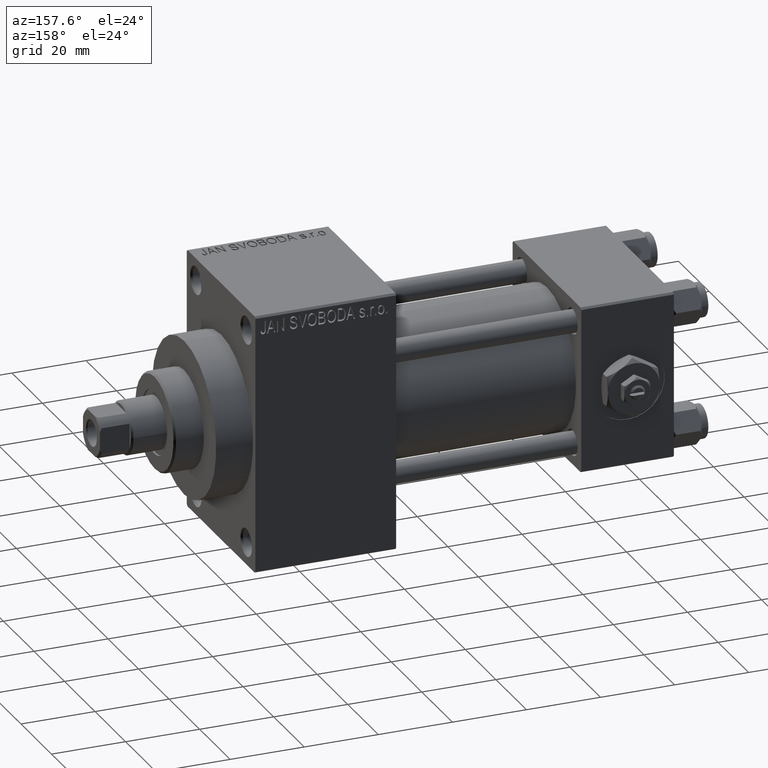
[diagram: clean part render]
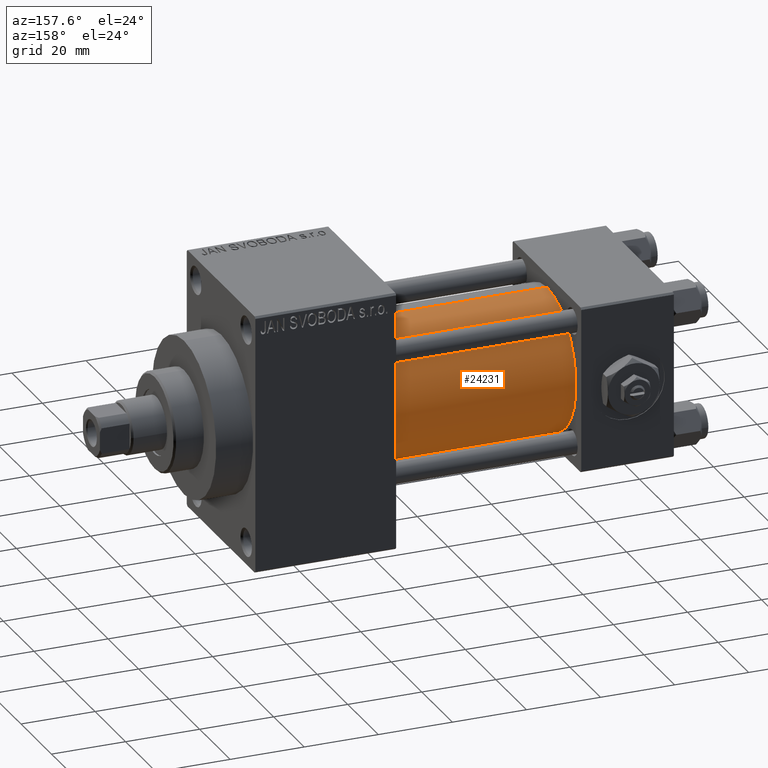
[diagram: same view with one face highlighted and labeled with its STEP entity id]
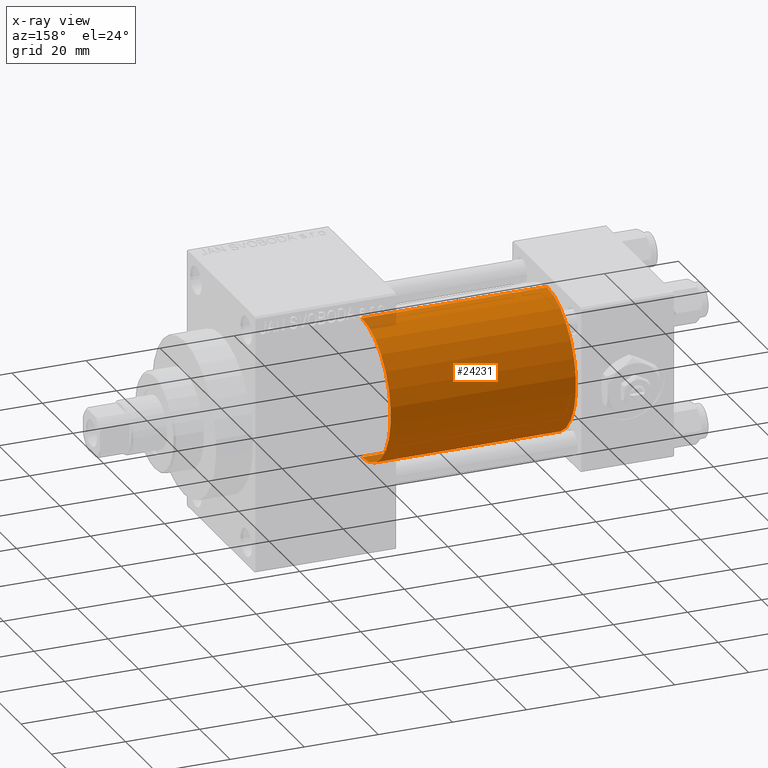
[diagram: x-ray of the same camera — body ghosted, the highlighted face saturated]
A machine part, auxiliary view. The second image highlights one B-rep face of the part: STEP entity #24231.
The next image is the same camera in x-ray: the body ghosted, the highlighted face saturated — about 2% of this face is hidden behind the body in this view.
In plain terms, the highlighted cylindrical surface (partial cylindrical patch) has radius 19 mm, axis along (-1, -0, -0).
Its self-contained STEP definition (entity closure, byte-faithful):
#1923 = CIRCLE ( 'NONE', #32588, 19.00000000000000000 ) ;
#2603 = AXIS2_PLACEMENT_3D ( 'NONE', #43566, #43810, #2764 ) ;
#2764 = DIRECTION ( 'NONE',  ( 0.000000000000000000, 0.000000000000000000, 1.000000000000000000 ) ) ;
#3136 = VERTEX_POINT ( 'NONE', #10550 ) ;
#3220 = DIRECTION ( 'NONE',  ( -1.000000000000000000, -0.000000000000000000, -0.000000000000000000 ) ) ;
#3459 = CARTESIAN_POINT ( 'NONE',  ( 75.00000000000001421, -2.752562955852396712E-16, -19.00000000000000000 ) ) ;
#4553 = LINE ( 'NONE', #30877, #23171 ) ;
#5475 = CARTESIAN_POINT ( 'NONE',  ( 25.00000000000000000, -2.602085213965210642E-15, 0.000000000000000000 ) ) ;
#6110 = DIRECTION ( 'NONE',  ( 0.000000000000000000, 0.000000000000000000, -1.000000000000000000 ) ) ;
#6156 = EDGE_LOOP ( 'NONE', ( #14876, #29390, #19602, #47057 ) ) ;
#10288 = CARTESIAN_POINT ( 'NONE',  ( 75.00000000000001421, -2.602085213965210642E-15, 0.000000000000000000 ) ) ;
#10550 = CARTESIAN_POINT ( 'NONE',  ( 75.00000000000001421, -2.752562955852396712E-16, -19.00000000000000000 ) ) ;
#12020 = EDGE_CURVE ( 'NONE', #3136, #38512, #33940, .T. ) ;
#13981 = DIRECTION ( 'NONE',  ( 1.000000000000000000, 0.000000000000000000, 0.000000000000000000 ) ) ;
#14876 = ORIENTED_EDGE ( 'NONE', *, *, #44127, .F. ) ;
#17806 = VERTEX_POINT ( 'NONE', #35491 ) ;
#19602 = ORIENTED_EDGE ( 'NONE', *, *, #33291, .T. ) ;
#20487 = DIRECTION ( 'NONE',  ( 1.000000000000000000, -0.000000000000000000, 0.000000000000000000 ) ) ;
#20618 = VERTEX_POINT ( 'NONE', #34927 ) ;
#22749 = VECTOR ( 'NONE', #3220, 1000.000000000000000 ) ;
#23171 = VECTOR ( 'NONE', #45823, 1000.000000000000000 ) ;
#24231 = ADVANCED_FACE ( 'NONE', ( #35987 ), #28617, .T. ) ;
#28617 = CYLINDRICAL_SURFACE ( 'NONE', #2603, 19.00000000000000000 ) ;
#29390 = ORIENTED_EDGE ( 'NONE', *, *, #12020, .T. ) ;
#30877 = CARTESIAN_POINT ( 'NONE',  ( 75.00000000000001421, -2.602085213965210642E-15, 19.00000000000000000 ) ) ;
#32588 = AXIS2_PLACEMENT_3D ( 'NONE', #10288, #13981, #6110 ) ;
#33291 = EDGE_CURVE ( 'NONE', #38512, #17806, #34192, .T. ) ;
#33940 = LINE ( 'NONE', #3459, #22749 ) ;
#34192 = CIRCLE ( 'NONE', #40458, 19.00000000000000000 ) ;
#34927 = CARTESIAN_POINT ( 'NONE',  ( 75.00000000000001421, -2.602085213965210642E-15, 19.00000000000000000 ) ) ;
#35491 = CARTESIAN_POINT ( 'NONE',  ( 25.00000000000000000, -2.602085213965210642E-15, 19.00000000000000000 ) ) ;
#35987 = FACE_OUTER_BOUND ( 'NONE', #6156, .T. ) ;
#38512 = VERTEX_POINT ( 'NONE', #39075 ) ;
#39075 = CARTESIAN_POINT ( 'NONE',  ( 25.00000000000000000, -2.752562955852396712E-16, -19.00000000000000000 ) ) ;
#40458 = AXIS2_PLACEMENT_3D ( 'NONE', #5475, #20487, #46746 ) ;
#43566 = CARTESIAN_POINT ( 'NONE',  ( 75.00000000000001421, -2.602085213965210642E-15, 0.000000000000000000 ) ) ;
#43810 = DIRECTION ( 'NONE',  ( -1.000000000000000000, -0.000000000000000000, -0.000000000000000000 ) ) ;
#44127 = EDGE_CURVE ( 'NONE', #3136, #20618, #1923, .T. ) ;
#45442 = EDGE_CURVE ( 'NONE', #20618, #17806, #4553, .T. ) ;
#45823 = DIRECTION ( 'NONE',  ( -1.000000000000000000, -0.000000000000000000, -0.000000000000000000 ) ) ;
#46746 = DIRECTION ( 'NONE',  ( 0.000000000000000000, 0.000000000000000000, 1.000000000000000000 ) ) ;
#47057 = ORIENTED_EDGE ( 'NONE', *, *, #45442, .F. ) ;